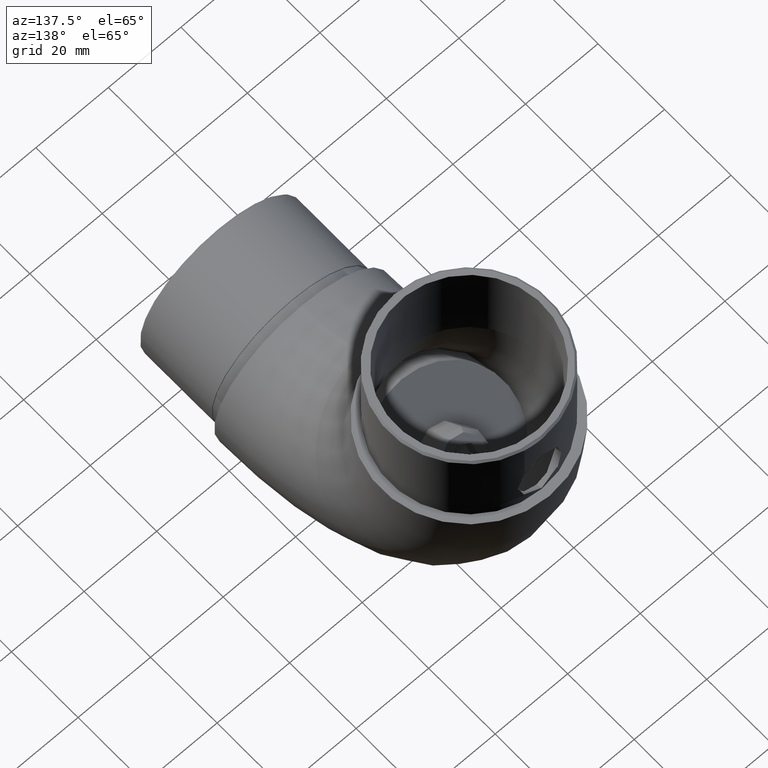
[diagram: clean part render]
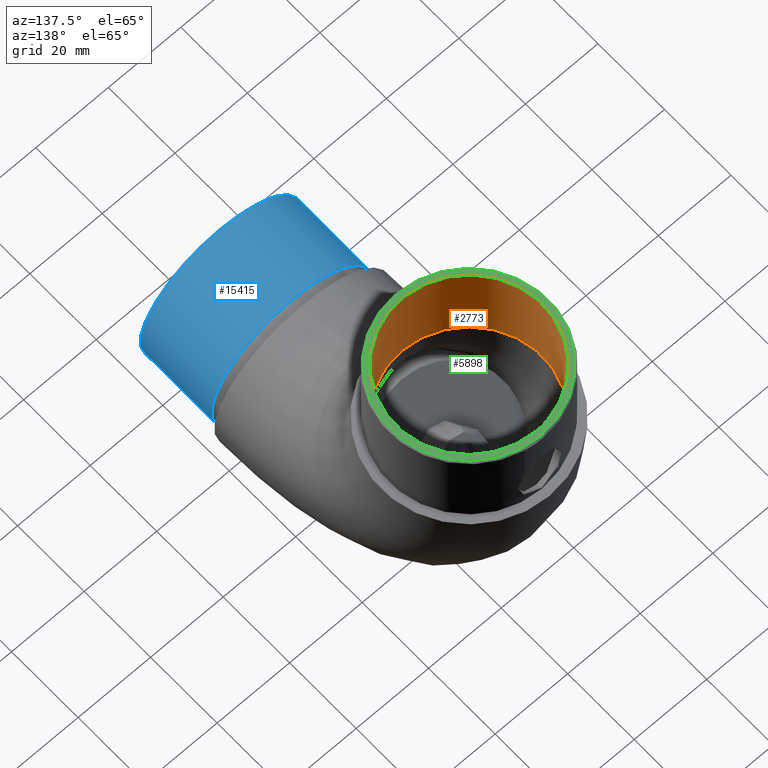
[diagram: same view with three faces highlighted in distinct colors, each labeled with its STEP entity id]
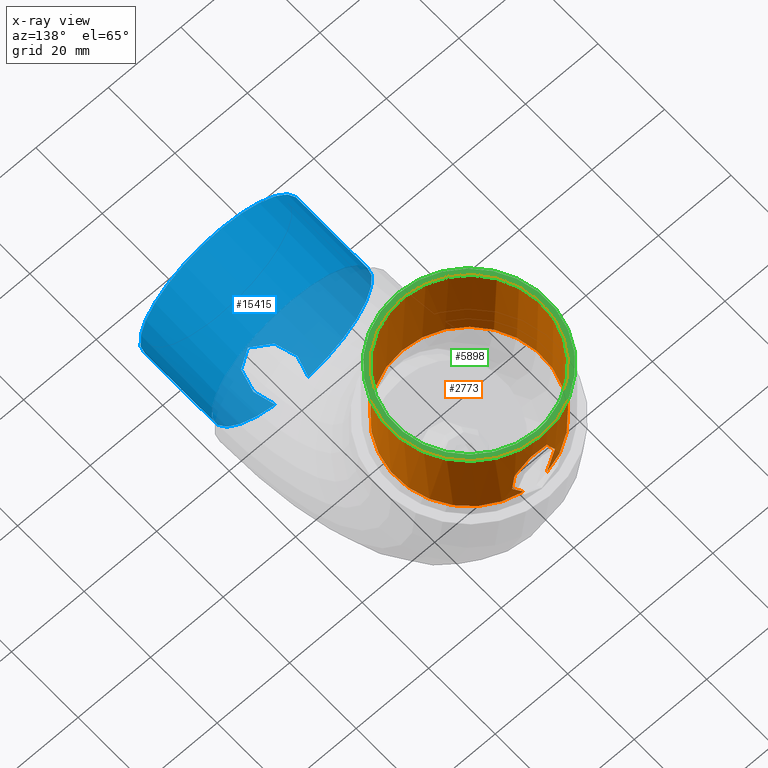
[diagram: x-ray of the same camera — body ghosted, the three highlighted faces saturated]
A machine part, auxiliary view with three faces highlighted in distinct colors.
The next image is the same camera in x-ray (body ghosted, the three faces saturated) — at least one of them is partly hidden behind the body in this view.
Their STEP definitions:

[orange] entity #2773 — the highlighted cylindrical surface (bore or boss wall) has radius 20.15 mm, axis along (0, -0, -1).
#81 = CARTESIAN_POINT ( 'NONE',  ( 0.9592310183031406100, -14.58474337772722500, -20.12801297306383600 ) ) ;
#874 = DIRECTION ( 'NONE',  ( 0.0000000000000000000, 0.0000000000000000000, -1.000000000000000000 ) ) ;
#992 = CARTESIAN_POINT ( 'NONE',  ( 0.0000000000000000000, -24.99999999999999600, 0.0000000000000000000 ) ) ;
#1063 = CARTESIAN_POINT ( 'NONE',  ( 4.552758449762433400, -1.309412004739496400, -19.63015017529509600 ) ) ;
#1104 = CARTESIAN_POINT ( 'NONE',  ( -3.481471496657646100, -0.2173419083040017700, -19.84963497359664700 ) ) ;
#1162 = CARTESIAN_POINT ( 'NONE',  ( -5.901068946296605900, -4.481951942944027300, -19.26767413044040100 ) ) ;
#1173 = CARTESIAN_POINT ( 'NONE',  ( 5.874923519370010000, -4.492391873485784600, -19.27460453420823700 ) ) ;
#1218 = CARTESIAN_POINT ( 'NONE',  ( -5.220578351693220900, -10.16939490033752200, -19.46261326461191000 ) ) ;
#1229 = CARTESIAN_POINT ( 'NONE',  ( 5.164540247288091900, -2.292561538339415300, -19.47757276268541200 ) ) ;
#1266 = CARTESIAN_POINT ( 'NONE',  ( 1.515801294164248700, -14.41695395961491500, -20.09634215467616500 ) ) ;
#1316 = CARTESIAN_POINT ( 'NONE',  ( 3.408367449315423700, -13.08636408395887200, -19.86173858340450600 ) ) ;
#2098 = FACE_OUTER_BOUND ( 'NONE', #4102, .T. ) ;
#2265 = CARTESIAN_POINT ( 'NONE',  ( -2.987337362999494600, -13.47717157604041000, -19.92783650932679200 ) ) ;
#2277 = CARTESIAN_POINT ( 'NONE',  ( 4.350436018306674600, -11.87766894348723800, -19.67577652247283700 ) ) ;
#2332 = CARTESIAN_POINT ( 'NONE',  ( 5.996880479167945300, -5.641720459275071600, -19.23694189233349400 ) ) ;
#2432 = CARTESIAN_POINT ( 'NONE',  ( 6.002560545844900700, -6.408415203449128400, -19.23517028112584600 ) ) ;
#2471 = CARTESIAN_POINT ( 'NONE',  ( -4.759156505115716300, -11.21965007498333800, -19.58249072554040300 ) ) ;
#2528 = CARTESIAN_POINT ( 'NONE',  ( 0.1869814946294220700, -14.70030994796217700, -20.15005934182366000 ) ) ;
#2586 = CARTESIAN_POINT ( 'NONE',  ( 4.136822928939959200, -12.19617630390207100, -19.72224095837085000 ) ) ;
#2710 = EDGE_CURVE ( 'NONE', #14889, #3896, #5143, .T. ) ;
#2773 = ADVANCED_FACE ( 'NONE', ( #4452, #2098 ), #16097, .F. ) ;
#3583 = CARTESIAN_POINT ( 'NONE',  ( 5.845575432012093000, -7.945170149017617000, -19.28363401373798400 ) ) ;
#3625 = CARTESIAN_POINT ( 'NONE',  ( -3.159691764977039100, -6.938893903907228400E-015, -19.90072480967303600 ) ) ;
#3689 = CARTESIAN_POINT ( 'NONE',  ( 0.0000000000000000000, -3.000000000000000000, 0.0000000000000000000 ) ) ;
#3735 = CARTESIAN_POINT ( 'NONE',  ( -4.381349502286616900, -11.88097028518979100, -19.67383602631163000 ) ) ;
#3739 = ORIENTED_EDGE ( 'NONE', *, *, #5471, .T. ) ;
#3785 = CARTESIAN_POINT ( 'NONE',  ( -0.7735400342653518900, -14.62696842012636000, -20.13605288528790600 ) ) ;
#3832 = CARTESIAN_POINT ( 'NONE',  ( -2.372420084170110900, -13.94845169471499900, -20.01054398956856400 ) ) ;
#3841 = CIRCLE ( 'NONE', #7858, 20.14999999999999900 ) ;
#3886 = ORIENTED_EDGE ( 'NONE', *, *, #6405, .T. ) ;
#3896 = VERTEX_POINT ( 'NONE', #7457 ) ;
#4073 = CARTESIAN_POINT ( 'NONE',  ( -3.159691764977039100, -6.938893903907228400E-015, -19.90072480967303600 ) ) ;
#4102 = EDGE_LOOP ( 'NONE', ( #3739, #5104 ) ) ;
#4452 = FACE_OUTER_BOUND ( 'NONE', #5865, .T. ) ;
#4885 = CARTESIAN_POINT ( 'NONE',  ( -4.175900909255541500, -0.8717768945792662100, -19.71301562456729400 ) ) ;
#4898 = CARTESIAN_POINT ( 'NONE',  ( 4.313870982061744500, -1.012889398171878100, -19.68469695413663300 ) ) ;
#4942 = CARTESIAN_POINT ( 'NONE',  ( -5.923721257876573000, -7.569885207846492200, -19.26028979946360700 ) ) ;
#5041 = CARTESIAN_POINT ( 'NONE',  ( 2.533904814781498000, -13.85040019238447000, -19.99279274182894300 ) ) ;
#5100 = CARTESIAN_POINT ( 'NONE',  ( -0.9645705281865485400, -14.58347398657022100, -20.12777154598956700 ) ) ;
#5104 = ORIENTED_EDGE ( 'NONE', *, *, #2710, .F. ) ;
#5143 = B_SPLINE_CURVE_WITH_KNOTS ( 'NONE', 3,
 ( #3625, #1104, #6023, #4885, #14821, #8609, #7462, #13560, #6132, #14914, #9930, #1162, #16101, #11131, #4942, #13620, #6178, #14870, #1218, #2471, #3735, #8708, #9710, #2265, #8764, #9986, #3832, #12532, #12484, #5100, #3785, #6288, #7508, #2528, #11287, #11229, #81, #1266, #13716, #5041, #14973, #1316, #10035, #2586, #2277, #9723, #11030, #14882, #11145, #3583, #8668, #7424, #2432, #2332, #5976, #1173, #14718, #8565, #7270, #1229, #15228, #1063, #4898, #9883, #14776, #6094 ),
 .UNSPECIFIED., .F., .F.,
 ( 4, 2, 2, 2, 2, 2, 2, 2, 2, 2, 2, 2, 2, 2, 2, 2, 2, 2, 2, 2, 2, 2, 2, 2, 2, 2, 2, 2, 2, 2, 2, 2, 4 ),
 ( 1.435259808869515600E-017, 0.001156566631932017900, 0.001734849947898018700, 0.002313133263864019400, 0.003469699895796021300, 0.004626266527728024000, 0.006939399791592027800, 0.009252533055456030700, 0.01040909968738803300, 0.01156566631932003800, 0.01387879958318403800, 0.01503536621511604100, 0.01561364953108204300, 0.01619193284704804200, 0.01734849947898004300, 0.01792678279494604200, 0.01850506611091204100, 0.01908334942687803600, 0.01966163274284403500, 0.02081819937477603200, 0.02197476600670803300, 0.02313133263864003400, 0.02428789927057203200, 0.02544446590250403300, 0.02775759916636802400, 0.02891416579830002500, 0.03007073243023202600, 0.03122729906216402700, 0.03238386569409602200, 0.03354043232602802600, 0.03469699895796003000, 0.03585356558989203500, 0.03701013222182403900 ),
 .UNSPECIFIED. ) ;
#5471 = EDGE_CURVE ( 'NONE', #14889, #3896, #3841, .T. ) ;
#5865 = EDGE_LOOP ( 'NONE', ( #3886 ) ) ;
#5891 = VERTEX_POINT ( 'NONE', #14450 ) ;
#5976 = CARTESIAN_POINT ( 'NONE',  ( 5.972515703674873500, -5.258508685512482300, -19.24458787498251400 ) ) ;
#6023 = CARTESIAN_POINT ( 'NONE',  ( -3.774712482047213300, -0.4632807313634257900, -19.79516555503640500 ) ) ;
#6030 = AXIS2_PLACEMENT_3D ( 'NONE', #3689, #7317, #16010 ) ;
#6094 = CARTESIAN_POINT ( 'NONE',  ( 3.159691764977039500, -6.938893903907228400E-015, -19.90072480967303600 ) ) ;
#6132 = CARTESIAN_POINT ( 'NONE',  ( -5.162889026676530200, -2.289298040574184500, -19.47801213169945500 ) ) ;
#6178 = CARTESIAN_POINT ( 'NONE',  ( -5.591234513200540800, -9.069966502411666900, -19.35911867675185500 ) ) ;
#6288 = CARTESIAN_POINT ( 'NONE',  ( -0.3916527233555754400, -14.68487287324957100, -20.14709900030301900 ) ) ;
#6405 = EDGE_CURVE ( 'NONE', #5891, #5891, #8679, .T. ) ;
#7270 = CARTESIAN_POINT ( 'NONE',  ( 5.474491394238146600, -2.996888008364226900, -19.39273731751079700 ) ) ;
#7281 = AXIS2_PLACEMENT_3D ( 'NONE', #992, #8323, #874 ) ;
#7317 = DIRECTION ( 'NONE',  ( -0.0000000000000000000, 1.000000000000000000, -0.0000000000000000000 ) ) ;
#7424 = CARTESIAN_POINT ( 'NONE',  ( 5.983843545889588900, -6.791898359243292700, -19.24104443354752500 ) ) ;
#7457 = CARTESIAN_POINT ( 'NONE',  ( 3.159691764977039500, -6.938893903907228400E-015, -19.90072480967303600 ) ) ;
#7462 = CARTESIAN_POINT ( 'NONE',  ( -4.659847397440159100, -1.470151727235464900, -19.60409160935666200 ) ) ;
#7508 = CARTESIAN_POINT ( 'NONE',  ( -0.1995598600030643600, -14.69967979926855900, -20.14993869520760600 ) ) ;
#7858 = AXIS2_PLACEMENT_3D ( 'NONE', #12957, #11672, #15344 ) ;
#8323 = DIRECTION ( 'NONE',  ( 0.0000000000000000000, -1.000000000000000000, 0.0000000000000000000 ) ) ;
#8565 = CARTESIAN_POINT ( 'NONE',  ( 5.600460219996203500, -3.360166872085901700, -19.35634893604248000 ) ) ;
#8609 = CARTESIAN_POINT ( 'NONE',  ( -4.544879120552855600, -1.313377199496701200, -19.63114676119363700 ) ) ;
#8668 = CARTESIAN_POINT ( 'NONE',  ( 5.905645592959266400, -7.559120762781811100, -19.26518945159365600 ) ) ;
#8679 = CIRCLE ( 'NONE', #7281, 20.14999999999999900 ) ;
#8708 = CARTESIAN_POINT ( 'NONE',  ( -3.670207180479037500, -12.79551623203253300, -19.81440047327211900 ) ) ;
#8764 = CARTESIAN_POINT ( 'NONE',  ( -2.840542321248506100, -13.60194525778822700, -19.94938114475240100 ) ) ;
#9710 = CARTESIAN_POINT ( 'NONE',  ( -3.410134355856686600, -13.08419592197133800, -19.86139203395191900 ) ) ;
#9723 = CARTESIAN_POINT ( 'NONE',  ( 4.740006589934853100, -11.21183432818636500, -19.58557665321721000 ) ) ;
#9883 = CARTESIAN_POINT ( 'NONE',  ( 3.779900964914956400, -0.4679454572482943400, -19.79416898284707600 ) ) ;
#9930 = CARTESIAN_POINT ( 'NONE',  ( -5.601413547206214500, -3.363220012656325000, -19.35607169726393200 ) ) ;
#9986 = CARTESIAN_POINT ( 'NONE',  ( -2.533542962323682700, -13.83733757517914300, -19.99068905254310400 ) ) ;
#10035 = CARTESIAN_POINT ( 'NONE',  ( 3.665937074379776100, -12.80024998066235000, -19.81517089838317600 ) ) ;
#11030 = CARTESIAN_POINT ( 'NONE',  ( 4.915075742128666800, -10.86530860934629000, -19.54200346951731900 ) ) ;
#11131 = CARTESIAN_POINT ( 'NONE',  ( -6.005446262376226600, -6.805335208012556000, -19.23427022522564700 ) ) ;
#11145 = CARTESIAN_POINT ( 'NONE',  ( 5.608659748576238600, -9.080731468469750200, -19.35439504229577400 ) ) ;
#11229 = CARTESIAN_POINT ( 'NONE',  ( 0.7699136484238168200, -14.62782579822153500, -20.13621602504600700 ) ) ;
#11287 = CARTESIAN_POINT ( 'NONE',  ( 0.3829657225786345400, -14.68587259336833000, -20.14729014256454300 ) ) ;
#11672 = DIRECTION ( 'NONE',  ( 0.0000000000000000000, 1.000000000000000000, 0.0000000000000000000 ) ) ;
#12484 = CARTESIAN_POINT ( 'NONE',  ( -1.525571522988027600, -14.41330894961323100, -20.09565789850672200 ) ) ;
#12532 = CARTESIAN_POINT ( 'NONE',  ( -1.875695957579350400, -14.25085121889419100, -20.06527487804864100 ) ) ;
#12957 = CARTESIAN_POINT ( 'NONE',  ( 0.0000000000000000000, -6.938893903907228400E-015, 6.938893903907228400E-015 ) ) ;
#13560 = CARTESIAN_POINT ( 'NONE',  ( -4.980290150773596400, -1.951865565117441000, -19.52607365539780200 ) ) ;
#13620 = CARTESIAN_POINT ( 'NONE',  ( -5.688710957919779400, -8.697398191425831400, -19.33048762479438300 ) ) ;
#13716 = CARTESIAN_POINT ( 'NONE',  ( 1.874755122376510000, -14.25116359706578900, -20.06533649005727700 ) ) ;
#14450 = CARTESIAN_POINT ( 'NONE',  ( 0.0000000000000000000, -24.99999999999999600, -20.14999999999999900 ) ) ;
#14718 = CARTESIAN_POINT ( 'NONE',  ( 5.800725078106156100, -4.106826211027619200, -19.29727927397598500 ) ) ;
#14776 = CARTESIAN_POINT ( 'NONE',  ( 3.482126067224271500, -0.2177840294261760000, -19.84953104566191900 ) ) ;
#14821 = CARTESIAN_POINT ( 'NONE',  ( -4.303139754252606900, -1.014584733078835300, -19.68554895438101200 ) ) ;
#14870 = CARTESIAN_POINT ( 'NONE',  ( -5.356447084527673000, -9.808386678662007100, -19.42539198968253800 ) ) ;
#14882 = CARTESIAN_POINT ( 'NONE',  ( 5.377538603093437800, -9.811018662644492800, -19.42179330510432700 ) ) ;
#14889 = VERTEX_POINT ( 'NONE', #4073 ) ;
#14914 = CARTESIAN_POINT ( 'NONE',  ( -5.473224579771560600, -2.993525200580943400, -19.39309651406377500 ) ) ;
#14973 = CARTESIAN_POINT ( 'NONE',  ( 2.838698395916075000, -13.61479181864286000, -19.95112577380222900 ) ) ;
#15228 = CARTESIAN_POINT ( 'NONE',  ( 4.978086597705691400, -1.948309936428432400, -19.52662436859643300 ) ) ;
#15344 = DIRECTION ( 'NONE',  ( 0.0000000000000000000, 0.0000000000000000000, 1.000000000000000000 ) ) ;
#16010 = DIRECTION ( 'NONE',  ( 0.0000000000000000000, 0.0000000000000000000, 1.000000000000000000 ) ) ;
#16097 = CYLINDRICAL_SURFACE ( 'NONE', #6030, 20.14999999999999900 ) ;
#16101 = CARTESIAN_POINT ( 'NONE',  ( -5.994005307827873000, -5.246230634239498900, -19.23783865918990800 ) ) ;

[blue] entity #15415 — the highlighted cylindrical surface (bore or boss wall) has radius 22.1 mm, axis along (0, 1, 0).
#96 = CARTESIAN_POINT ( 'NONE',  ( 0.0000000000000000000, -3.000000000000000000, 0.0000000000000000000 ) ) ;
#210 = DIRECTION ( 'NONE',  ( 0.0000000000000000000, 0.0000000000000000000, -1.000000000000000000 ) ) ;
#236 = CARTESIAN_POINT ( 'NONE',  ( -5.865065467573441700, -6.147041115897825300, -21.30766952307185500 ) ) ;
#332 = CARTESIAN_POINT ( 'NONE',  ( -0.6903308175132971700, -16.27899717350988200, -22.08988395160935900 ) ) ;
#441 = CARTESIAN_POINT ( 'NONE',  ( 1.687011661653667400, -15.96979589177802500, -22.03610696254499100 ) ) ;
#489 = CARTESIAN_POINT ( 'NONE',  ( 5.622452401839781900, -5.133176848741928000, -21.37316622047726300 ) ) ;
#553 = CARTESIAN_POINT ( 'NONE',  ( 2.590688215646923500, -15.45307878791772500, -21.94927126152289900 ) ) ;
#823 = EDGE_CURVE ( 'NONE', #15020, #15020, #13797, .T. ) ;
#1023 = FACE_OUTER_BOUND ( 'NONE', #10147, .T. ) ;
#1192 = ORIENTED_EDGE ( 'NONE', *, *, #823, .T. ) ;
#1208 = CYLINDRICAL_SURFACE ( 'NONE', #12228, 22.10000000000000100 ) ;
#1473 = CARTESIAN_POINT ( 'NONE',  ( -5.917897131592670900, -6.487538204520688200, -21.29295087954306700 ) ) ;
#1588 = CARTESIAN_POINT ( 'NONE',  ( 5.737164448288745600, -10.25729929743957300, -21.34329501174157400 ) ) ;
#1633 = CARTESIAN_POINT ( 'NONE',  ( 5.917451593290259400, -6.484756629912432400, -21.29307468466787500 ) ) ;
#1689 = CARTESIAN_POINT ( 'NONE',  ( -1.361214101046412300, -16.11178624349291500, -22.06057804159077700 ) ) ;
#1749 = CARTESIAN_POINT ( 'NONE',  ( 3.369633724528628100, -14.77942813688493700, -21.84284017541308400 ) ) ;
#2197 = CARTESIAN_POINT ( 'NONE',  ( -4.549393221428450000, -3.000000000000000000, -21.62667383849908700 ) ) ;
#2787 = CARTESIAN_POINT ( 'NONE',  ( -4.549393221428450000, -3.000000000000000000, -21.62667383849908700 ) ) ;
#2895 = CARTESIAN_POINT ( 'NONE',  ( -0.3467416645892824600, -16.32467181274946100, -22.09794786515741200 ) ) ;
#2953 = CARTESIAN_POINT ( 'NONE',  ( 5.442070922202701900, -11.24817889750183400, -21.41971495010965400 ) ) ;
#2957 = CARTESIAN_POINT ( 'NONE',  ( 4.549393221428446500, -3.000000000000000000, -21.62667383849908700 ) ) ;
#3001 = CARTESIAN_POINT ( 'NONE',  ( -4.443808502469755300, -13.43446426855412100, -21.65109563853586700 ) ) ;
#3963 = DIRECTION ( 'NONE',  ( 0.0000000000000000000, 0.0000000000000000000, -1.000000000000000000 ) ) ;
#3995 = CARTESIAN_POINT ( 'NONE',  ( -5.623680963928466200, -5.136977116678460600, -21.37284493495804200 ) ) ;
#4101 = CARTESIAN_POINT ( 'NONE',  ( 3.828604590102368600, -14.26667381344868900, -21.76708260789137500 ) ) ;
#4151 = CARTESIAN_POINT ( 'NONE',  ( 0.6942288324045514700, -16.28939248144321200, -22.09165889263901100 ) ) ;
#4201 = CARTESIAN_POINT ( 'NONE',  ( -5.635142462178635000, -10.60137647729959200, -21.36973488534117700 ) ) ;
#4226 = CIRCLE ( 'NONE', #11544, 22.10000000000000100 ) ;
#4258 = CARTESIAN_POINT ( 'NONE',  ( 5.998164516361338600, -8.203636997196330300, -21.27044958602737500 ) ) ;
#4639 = ORIENTED_EDGE ( 'NONE', *, *, #5396, .T. ) ;
#5294 = CARTESIAN_POINT ( 'NONE',  ( -5.083768429535411700, -12.22493227662139100, -21.50982740308504800 ) ) ;
#5361 = CARTESIAN_POINT ( 'NONE',  ( 0.0000000000000000000, -24.49999999999998200, 0.0000000000000000000 ) ) ;
#5392 = CARTESIAN_POINT ( 'NONE',  ( 1.843496274731645900, -15.89618528287154200, -22.02350920491912200 ) ) ;
#5396 = EDGE_CURVE ( 'NONE', #10851, #7342, #4226, .T. ) ;
#5454 = CARTESIAN_POINT ( 'NONE',  ( 5.978786486831155300, -8.552377864633392300, -21.27593662620099100 ) ) ;
#6439 = CARTESIAN_POINT ( 'NONE',  ( -5.276396807426630500, -4.162663821893599600, -21.46221772142456200 ) ) ;
#6537 = CARTESIAN_POINT ( 'NONE',  ( 4.924457550030652400, -12.52589899483086800, -21.54498816116645400 ) ) ;
#6595 = CARTESIAN_POINT ( 'NONE',  ( 4.604760882263139600, -13.13039441510743900, -21.61557249401540700 ) ) ;
#6654 = CARTESIAN_POINT ( 'NONE',  ( -1.688214558036830600, -15.97915063186679200, -22.03753636110479900 ) ) ;
#6703 = CARTESIAN_POINT ( 'NONE',  ( 5.864711319505004500, -6.144875284799192100, -21.30776792599355900 ) ) ;
#7342 = VERTEX_POINT ( 'NONE', #2197 ) ;
#7621 = DIRECTION ( 'NONE',  ( 0.0000000000000000000, 0.0000000000000000000, 1.000000000000000000 ) ) ;
#7764 = CARTESIAN_POINT ( 'NONE',  ( -3.367319893449968000, -14.78171450781848200, -21.84319178001194200 ) ) ;
#7795 = FACE_OUTER_BOUND ( 'NONE', #10921, .T. ) ;
#7818 = CARTESIAN_POINT ( 'NONE',  ( 5.276173445138722300, -4.162748316835349600, -21.46226490781508300 ) ) ;
#7862 = CARTESIAN_POINT ( 'NONE',  ( 1.365177272660582600, -16.09898084613443100, -22.05838410730692100 ) ) ;
#7924 = CARTESIAN_POINT ( 'NONE',  ( 6.001584677104448300, -7.512282526007009400, -21.26948482029156300 ) ) ;
#8781 = DIRECTION ( 'NONE',  ( 0.0000000000000000000, -1.000000000000000000, 0.0000000000000000000 ) ) ;
#9020 = CARTESIAN_POINT ( 'NONE',  ( -5.338962189465674700, -11.59130316215405200, -21.44637688036654300 ) ) ;
#9027 = ORIENTED_EDGE ( 'NONE', *, *, #13666, .T. ) ;
#9080 = CARTESIAN_POINT ( 'NONE',  ( 4.429212198290642300, -13.42395548250337700, -21.65250576324825700 ) ) ;
#9142 = CARTESIAN_POINT ( 'NONE',  ( -5.997694719674640000, -8.216346395769642500, -21.27058210007577100 ) ) ;
#9177 = CARTESIAN_POINT ( 'NONE',  ( 0.0000000000000000000, -24.49999999999998200, -22.10000000000000100 ) ) ;
#9199 = CARTESIAN_POINT ( 'NONE',  ( 4.964117843017159100, -3.556404339889602400, -21.53943224988012200 ) ) ;
#10147 = EDGE_LOOP ( 'NONE', ( #9027, #4639 ) ) ;
#10195 = CARTESIAN_POINT ( 'NONE',  ( -5.986364918440389500, -7.174794720752146300, -21.27380310809548500 ) ) ;
#10216 = DIRECTION ( 'NONE',  ( 0.0000000000000000000, 1.000000000000000000, 0.0000000000000000000 ) ) ;
#10302 = CARTESIAN_POINT ( 'NONE',  ( -4.054338650699799400, -14.01507939162817900, -21.72988310410947900 ) ) ;
#10359 = CARTESIAN_POINT ( 'NONE',  ( -2.295902026757925100, -15.65378553456280400, -21.98253650388218700 ) ) ;
#10405 = CARTESIAN_POINT ( 'NONE',  ( 5.871946702685330700, -9.583554699171370900, -21.30576707442762800 ) ) ;
#10447 = AXIS2_PLACEMENT_3D ( 'NONE', #5361, #10216, #210 ) ;
#10458 = CARTESIAN_POINT ( 'NONE',  ( -6.001923547690076100, -7.523272834822967600, -21.26938923792029700 ) ) ;
#10518 = CARTESIAN_POINT ( 'NONE',  ( 4.549393221428446500, -3.000000000000000000, -21.62667383849908700 ) ) ;
#10851 = VERTEX_POINT ( 'NONE', #2957 ) ;
#10921 = EDGE_LOOP ( 'NONE', ( #1192 ) ) ;
#11544 = AXIS2_PLACEMENT_3D ( 'NONE', #96, #8781, #3963 ) ;
#11595 = CARTESIAN_POINT ( 'NONE',  ( -5.719288596413361100, -10.26345183913430700, -21.34724032523109500 ) ) ;
#11658 = CARTESIAN_POINT ( 'NONE',  ( -5.854837811803557600, -9.586233494311336800, -21.31046235419851300 ) ) ;
#11717 = CARTESIAN_POINT ( 'NONE',  ( -5.906719014760782600, -9.245715341901181700, -21.29605703477028900 ) ) ;
#12228 = AXIS2_PLACEMENT_3D ( 'NONE', #15082, #12540, #7621 ) ;
#12540 = DIRECTION ( 'NONE',  ( -0.0000000000000000000, 1.000000000000000000, 0.0000000000000000000 ) ) ;
#12633 = CARTESIAN_POINT ( 'NONE',  ( -4.963526276902815200, -3.555610680829551600, -21.53955669189513600 ) ) ;
#12686 = CARTESIAN_POINT ( 'NONE',  ( -5.718410490732536800, -5.472907821147824600, -21.34749528405727400 ) ) ;
#12733 = CARTESIAN_POINT ( 'NONE',  ( -0.1712037102125620900, -16.33638433713508300, -22.10002480036274300 ) ) ;
#12791 = CARTESIAN_POINT ( 'NONE',  ( 5.068567562902427600, -12.21494485598029200, -21.51133053543820500 ) ) ;
#12849 = CARTESIAN_POINT ( 'NONE',  ( 1.198683629055011400, -16.15482263191991000, -22.06811034349226100 ) ) ;
#12896 = CARTESIAN_POINT ( 'NONE',  ( 0.3519234040811976500, -16.33596031148167400, -22.09994971636392700 ) ) ;
#13666 = EDGE_CURVE ( 'NONE', #7342, #10851, #13677, .T. ) ;
#13677 = B_SPLINE_CURVE_WITH_KNOTS ( 'NONE', 3,
 ( #2787, #12633, #6439, #3995, #12686, #236, #1473, #10195, #10458, #9142, #15334, #11717, #11658, #11595, #4201, #9020, #5294, #3001, #10302, #7764, #14205, #15439, #10359, #6654, #1689, #14040, #332, #2895, #12733, #12896, #4151, #12849, #7862, #441, #5392, #14086, #553, #13983, #1749, #4101, #15275, #9080, #6595, #6537, #12791, #15233, #2953, #1588, #10405, #5454, #4258, #7924, #14140, #1633, #6703, #15388, #489, #7818, #9199, #10518 ),
 .UNSPECIFIED., .F., .F.,
 ( 4, 2, 2, 2, 2, 2, 2, 2, 2, 2, 2, 2, 2, 2, 2, 2, 2, 2, 2, 2, 2, 2, 2, 2, 2, 2, 2, 2, 2, 4 ),
 ( 4.271261210083258200E-018, 0.002061612280825953200, 0.003092418421238927000, 0.004123224561651901200, 0.005154030702064874500, 0.006184836842477848700, 0.007215642982890823000, 0.008246449123303797200, 0.01030806140412974700, 0.01236967368495569900, 0.01340047982536867400, 0.01443128596578165300, 0.01546209210619462800, 0.01597749517640111700, 0.01649289824660760500, 0.01752370438702058300, 0.01803910745722707400, 0.01855451052743356200, 0.01958531666784654000, 0.02061612280825951900, 0.02164692894867250100, 0.02267773508908547600, 0.02370854122949845500, 0.02473934736991143300, 0.02680095965073738300, 0.02783176579115035800, 0.02886257193156333000, 0.02989337807197630200, 0.03092418421238927000, 0.03298579649321521600 ),
 .UNSPECIFIED. ) ;
#13797 = CIRCLE ( 'NONE', #10447, 22.10000000000000100 ) ;
#13983 = CARTESIAN_POINT ( 'NONE',  ( 3.123484878795052200, -15.01815876275551900, -21.87980842134010500 ) ) ;
#14040 = CARTESIAN_POINT ( 'NONE',  ( -0.8597438355402882100, -16.24507622392454600, -22.08390459988343200 ) ) ;
#14086 = CARTESIAN_POINT ( 'NONE',  ( 2.300886097405243200, -15.65076051093711500, -21.98203057097304800 ) ) ;
#14140 = CARTESIAN_POINT ( 'NONE',  ( 5.985899929130993300, -7.168459119395650200, -21.27393393155593800 ) ) ;
#14205 = CARTESIAN_POINT ( 'NONE',  ( -3.120088091245333000, -15.02155371675217800, -21.88033178834262300 ) ) ;
#15020 = VERTEX_POINT ( 'NONE', #9177 ) ;
#15082 = CARTESIAN_POINT ( 'NONE',  ( 0.0000000000000000000, -24.99999999999999600, 0.0000000000000000000 ) ) ;
#15233 = CARTESIAN_POINT ( 'NONE',  ( 5.327321210291985100, -11.57654551209572200, -21.44871481620649300 ) ) ;
#15275 = CARTESIAN_POINT ( 'NONE',  ( 4.041930943520438500, -13.99129267630349600, -21.72813201296415300 ) ) ;
#15334 = CARTESIAN_POINT ( 'NONE',  ( -5.978143157148420700, -8.560771287427481700, -21.27611757676115900 ) ) ;
#15388 = CARTESIAN_POINT ( 'NONE',  ( 5.717555575458725900, -5.469520355797001800, -21.34772519709466800 ) ) ;
#15415 = ADVANCED_FACE ( 'NONE', ( #7795, #1023 ), #1208, .T. ) ;
#15439 = CARTESIAN_POINT ( 'NONE',  ( -2.581052293917642300, -15.46030715688369400, -21.95044505063964400 ) ) ;

[green] entity #5898 — the highlighted planar face has unit normal (-0, 0, 1).
#586 = CARTESIAN_POINT ( 'NONE',  ( 0.0000000000000000000, -24.99999999999999600, -21.59999999999999400 ) ) ;
#603 = CARTESIAN_POINT ( 'NONE',  ( 0.0000000000000000000, -24.99999999999999600, 0.0000000000000000000 ) ) ;
#874 = DIRECTION ( 'NONE',  ( 0.0000000000000000000, 0.0000000000000000000, -1.000000000000000000 ) ) ;
#992 = CARTESIAN_POINT ( 'NONE',  ( 0.0000000000000000000, -24.99999999999999600, 0.0000000000000000000 ) ) ;
#2703 = DIRECTION ( 'NONE',  ( 0.0000000000000000000, -1.000000000000000000, 0.0000000000000000000 ) ) ;
#3054 = FACE_BOUND ( 'NONE', #4321, .T. ) ;
#3420 = AXIS2_PLACEMENT_3D ( 'NONE', #603, #10350, #11647 ) ;
#3990 = ORIENTED_EDGE ( 'NONE', *, *, #6405, .F. ) ;
#4321 = EDGE_LOOP ( 'NONE', ( #3990 ) ) ;
#4529 = EDGE_CURVE ( 'NONE', #12301, #12301, #16081, .T. ) ;
#5891 = VERTEX_POINT ( 'NONE', #14450 ) ;
#5898 = ADVANCED_FACE ( 'NONE', ( #11239, #3054 ), #9302, .T. ) ;
#6311 = CARTESIAN_POINT ( 'NONE',  ( 0.0000000000000000000, -24.99999999999999600, 0.0000000000000000000 ) ) ;
#6405 = EDGE_CURVE ( 'NONE', #5891, #5891, #8679, .T. ) ;
#6438 = ORIENTED_EDGE ( 'NONE', *, *, #4529, .T. ) ;
#7281 = AXIS2_PLACEMENT_3D ( 'NONE', #992, #8323, #874 ) ;
#7676 = DIRECTION ( 'NONE',  ( 0.0000000000000000000, 0.0000000000000000000, -1.000000000000000000 ) ) ;
#8323 = DIRECTION ( 'NONE',  ( 0.0000000000000000000, -1.000000000000000000, 0.0000000000000000000 ) ) ;
#8679 = CIRCLE ( 'NONE', #7281, 20.14999999999999900 ) ;
#9302 = PLANE ( 'NONE',  #3420 ) ;
#10350 = DIRECTION ( 'NONE',  ( 0.0000000000000000000, -1.000000000000000000, 0.0000000000000000000 ) ) ;
#11239 = FACE_OUTER_BOUND ( 'NONE', #12841, .T. ) ;
#11647 = DIRECTION ( 'NONE',  ( 0.0000000000000000000, -0.0000000000000000000, -1.000000000000000000 ) ) ;
#12301 = VERTEX_POINT ( 'NONE', #586 ) ;
#12841 = EDGE_LOOP ( 'NONE', ( #6438 ) ) ;
#14450 = CARTESIAN_POINT ( 'NONE',  ( 0.0000000000000000000, -24.99999999999999600, -20.14999999999999900 ) ) ;
#15384 = AXIS2_PLACEMENT_3D ( 'NONE', #6311, #2703, #7676 ) ;
#16081 = CIRCLE ( 'NONE', #15384, 21.59999999999999400 ) ;